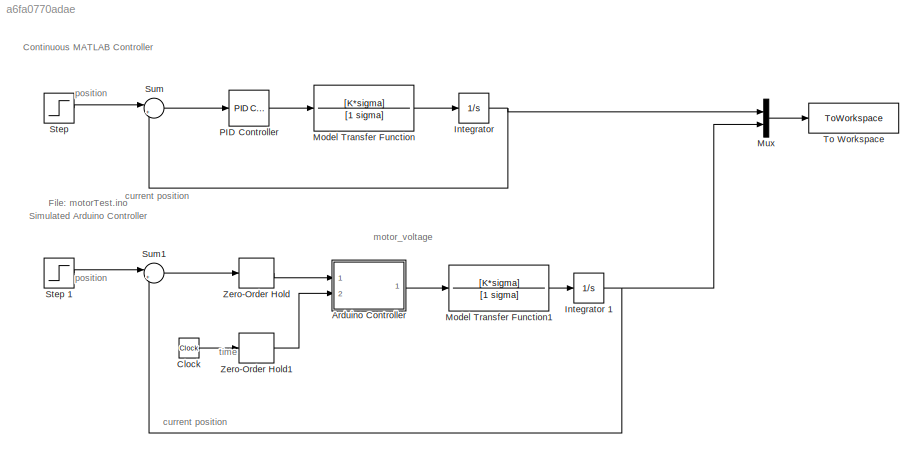
MODEL slx_a6fa0770adae
KIND model
CONFIG AbsTol = auto
CONFIG EnableMultiTasking = off
CONFIG FixedStep = auto
CONFIG MaxStep = auto
CONFIG MinStep = auto
CONFIG RelTol = 1e-3
CONFIG SampleTimeConstraint = Unconstrained
CONFIG SolverName = VariableStepAuto
CONFIG StartTime = 0.0
CONFIG StopTime = 10.0
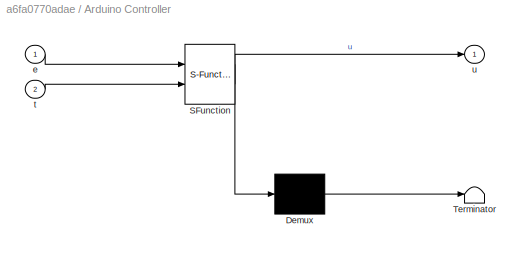
BLOCK [SubSystem] Arduino Controller
  ErrorFcn = Stateflow.Translate.translate
  PermitHierarchicalResolution = ExplicitOnly
  Ports = [2, 1]
  RequestExecContextInheritance = off
  SFBlockType = MATLAB Function
  TreatAsAtomicUnit = on
BLOCK [Demux] Arduino Controller/ Demux 
  Outputs = 1
  Ports = [1, 1]
BLOCK [S-Function] Arduino Controller/ SFunction 
  EnableBusSupport = on
  FunctionName = sf_sfun
  PortCounts = [2 2]
  Ports = [2, 2]
  SFcnIsStateOwnerBlock = off
  SFunctionDeploymentMode = off
  Tag = Stateflow S-Function 2
BLOCK [Terminator] Arduino Controller/ Terminator 
BLOCK [Inport] Arduino Controller/e
BLOCK [Inport] Arduino Controller/t
  Port = 2
BLOCK [Outport] Arduino Controller/u
BLOCK [Clock] Clock
BLOCK [Integrator] Integrator 
  Ports = [1, 1]
BLOCK [Integrator] Integrator 1
  Ports = [1, 1]
BLOCK [TransferFcn] Model Transfer Function
  Denominator = [1 sigma]
  Numerator = [K*sigma]
BLOCK [TransferFcn] Model Transfer Function1
  Denominator = [1 sigma]
  Numerator = [K*sigma]
BLOCK [Mux] Mux
  DisplayOption = bar
  Inputs = 2
  Ports = [2, 1]
BLOCK [Reference] PID Controller   REF=slpidlib/PID Controller
  Ports = [1, 1]
  SourceBlock = slpidlib/PID Controller
  SourceProductBaseCode = SL
  SourceType = PID 1dof
BLOCK [Step] Step 
  SampleTime = 0
BLOCK [Step] Step 1 
  SampleTime = 0
BLOCK [Sum] Sum
  Inputs = |+-
  Ports = [2, 1]
BLOCK [Sum] Sum1
  Inputs = |+-
  Ports = [2, 1]
BLOCK [ToWorkspace] To Workspace
  FixptAsFi = on
  MaxDataPoints = inf
  Ports = [1]
  SampleTime = -1
  SaveFormat = Timeseries
  VariableName = Position
BLOCK [ZeroOrderHold] Zero-Order Hold
  SampleTime = 10/1000
BLOCK [ZeroOrderHold] Zero-Order Hold1
  SampleTime = 10/1000
ANNOTATION (root): Continuous MATLAB Controller
ANNOTATION (root): Simulated Arduino Controller File: motorTest.ino
ANNOTATION (root): current position
ANNOTATION (root): motor_voltage
ANNOTATION (root): position
ANNOTATION (root): time
LINE Arduino Controller:1 -> Model Transfer Function1:1
LINE Clock:1 -> Zero-Order Hold1:1
NET Integrator 1:1 -> Mux:2, Sum1:2
NET Integrator :1 -> Mux:1, Sum:2
LINE Model Transfer Function1:1 -> Integrator 1:1
LINE Model Transfer Function:1 -> Integrator :1
LINE Mux:1 -> To Workspace:1
LINE PID Controller :1 -> Model Transfer Function:1
LINE Step 1 :1 -> Sum1:1
LINE Step :1 -> Sum:1
LINE Sum1:1 -> Zero-Order Hold:1
LINE Sum:1 -> PID Controller :1
LINE Zero-Order Hold1:1 -> Arduino Controller:2
LINE Zero-Order Hold:1 -> Arduino Controller:1
note: NET lines group one-source signal fan-out (src -> all destinations, sorted); 1:1 wires keep LINE
CHART Arduino Controller states=1 transitions=1
  STATE_LABEL 'eML_blk_kernel()'
  STATE_LABEL 'SCRIPT:\nfunction u = fcn(e,t)\n%% Define Variables\n% Control Gains\nKp = 0.36594;\nKi = 0.029859;\numax = 10;\n% Memory variables\npersistent I_past;\npersistent t_past;\nif isempty(I_past), I_past = 0; end;\nif isempty(t_past), t_past = 0; end;\n%% Calculate Controller output\n% sample time\nTs = t - t_past;\n% Integrator\nI = I_past+e*Ts;\n% PI control calculation\nu = Kp*e+Ki*I;\n% anti-windup\nif abs(u)>umax\n  ...<+108ch>'
CHART  states=0 transitions=0
